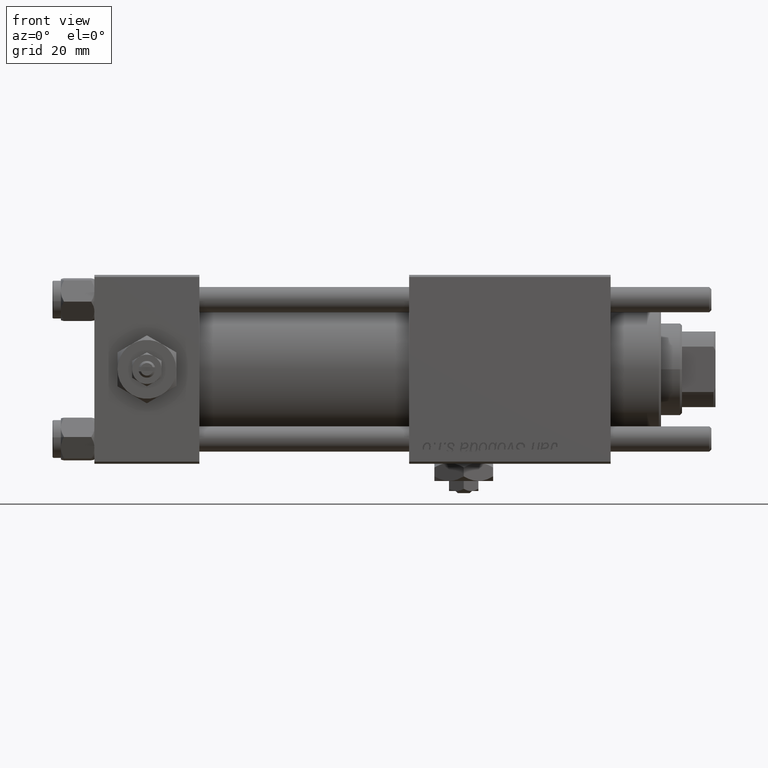
[diagram: clean part render]
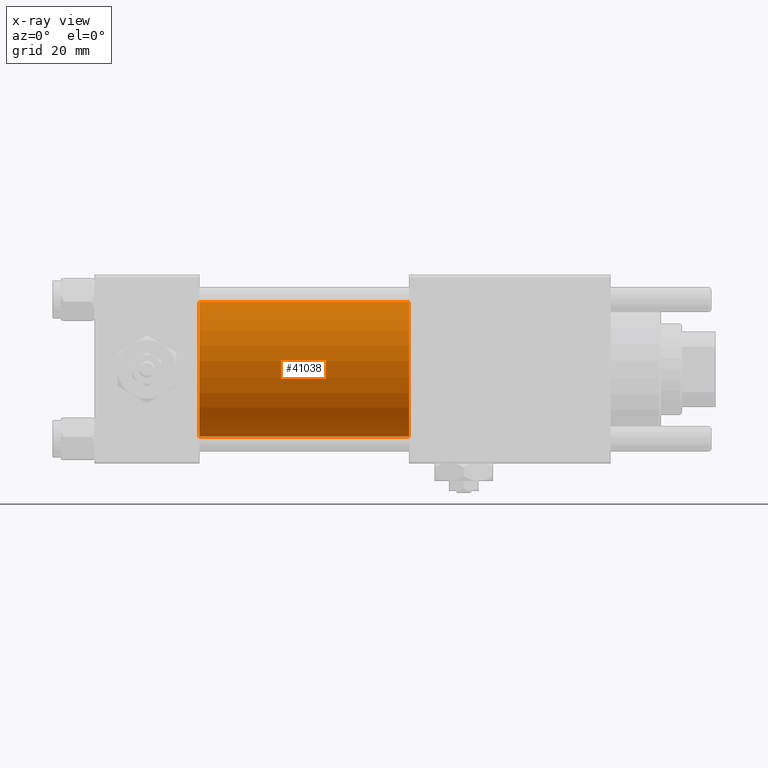
[diagram: x-ray — body ghosted, one internal face saturated and labeled with its STEP entity id]
A machine part, front view, then the same camera in x-ray: the body is ghosted and one INTERNAL B-rep face — a face not visible from any outside direction — is saturated and labeled: STEP entity #41038.
In plain terms, the highlighted cylindrical surface (partial cylindrical patch) has radius 16 mm, axis along (-1, -0, -0).
Its self-contained STEP definition (entity closure, byte-faithful):
#896 = EDGE_CURVE ( 'NONE', #45498, #35774, #36183, .T. ) ;
#2722 = DIRECTION ( 'NONE',  ( -1.000000000000000000, -0.000000000000000000, -0.000000000000000000 ) ) ;
#3216 = DIRECTION ( 'NONE',  ( 1.000000000000000000, 0.000000000000000000, 0.000000000000000000 ) ) ;
#3564 = EDGE_CURVE ( 'NONE', #45498, #3861, #39849, .T. ) ;
#3861 = VERTEX_POINT ( 'NONE', #52545 ) ;
#3974 = VECTOR ( 'NONE', #17234, 1000.000000000000000 ) ;
#4370 = AXIS2_PLACEMENT_3D ( 'NONE', #16381, #2722, #39287 ) ;
#5803 = LINE ( 'NONE', #52356, #49815 ) ;
#7405 = AXIS2_PLACEMENT_3D ( 'NONE', #53609, #8428, #34599 ) ;
#8428 = DIRECTION ( 'NONE',  ( 1.000000000000000000, 0.000000000000000000, 0.000000000000000000 ) ) ;
#9188 = ORIENTED_EDGE ( 'NONE', *, *, #3564, .F. ) ;
#14330 = AXIS2_PLACEMENT_3D ( 'NONE', #30267, #3216, #21342 ) ;
#15037 = VERTEX_POINT ( 'NONE', #21753 ) ;
#16381 = CARTESIAN_POINT ( 'NONE',  ( 75.00000000000001421, -2.602085213965210642E-15, 0.000000000000000000 ) ) ;
#16673 = DIRECTION ( 'NONE',  ( -1.000000000000000000, -0.000000000000000000, -0.000000000000000000 ) ) ;
#17234 = DIRECTION ( 'NONE',  ( -1.000000000000000000, -0.000000000000000000, -0.000000000000000000 ) ) ;
#18134 = EDGE_CURVE ( 'NONE', #35774, #15037, #5803, .T. ) ;
#21142 = CYLINDRICAL_SURFACE ( 'NONE', #4370, 16.00000000000000000 ) ;
#21342 = DIRECTION ( 'NONE',  ( 0.000000000000000000, 0.000000000000000000, -1.000000000000000000 ) ) ;
#21753 = CARTESIAN_POINT ( 'NONE',  ( 25.00000000000000000, -6.426503353294456087E-16, -16.00000000000000000 ) ) ;
#21759 = CARTESIAN_POINT ( 'NONE',  ( 75.00000000000001421, -2.602085213965210642E-15, 16.00000000000000000 ) ) ;
#30267 = CARTESIAN_POINT ( 'NONE',  ( 75.00000000000001421, -2.602085213965210642E-15, 0.000000000000000000 ) ) ;
#33065 = CIRCLE ( 'NONE', #7405, 16.00000000000000000 ) ;
#33696 = ORIENTED_EDGE ( 'NONE', *, *, #896, .T. ) ;
#34166 = CARTESIAN_POINT ( 'NONE',  ( 75.00000000000001421, -6.426503353294456087E-16, -16.00000000000000000 ) ) ;
#34599 = DIRECTION ( 'NONE',  ( 0.000000000000000000, 0.000000000000000000, -1.000000000000000000 ) ) ;
#35233 = EDGE_LOOP ( 'NONE', ( #33696, #52826, #48207, #9188 ) ) ;
#35774 = VERTEX_POINT ( 'NONE', #34166 ) ;
#36183 = CIRCLE ( 'NONE', #14330, 16.00000000000000000 ) ;
#39287 = DIRECTION ( 'NONE',  ( 0.000000000000000000, 0.000000000000000000, 1.000000000000000000 ) ) ;
#39849 = LINE ( 'NONE', #58534, #3974 ) ;
#41038 = ADVANCED_FACE ( 'NONE', ( #57103 ), #21142, .F. ) ;
#45498 = VERTEX_POINT ( 'NONE', #21759 ) ;
#48207 = ORIENTED_EDGE ( 'NONE', *, *, #53152, .F. ) ;
#49815 = VECTOR ( 'NONE', #16673, 1000.000000000000000 ) ;
#52356 = CARTESIAN_POINT ( 'NONE',  ( 75.00000000000001421, -6.426503353294456087E-16, -16.00000000000000000 ) ) ;
#52545 = CARTESIAN_POINT ( 'NONE',  ( 25.00000000000000000, -2.602085213965210642E-15, 16.00000000000000000 ) ) ;
#52826 = ORIENTED_EDGE ( 'NONE', *, *, #18134, .T. ) ;
#53152 = EDGE_CURVE ( 'NONE', #3861, #15037, #33065, .T. ) ;
#53609 = CARTESIAN_POINT ( 'NONE',  ( 25.00000000000000000, -2.602085213965210642E-15, 0.000000000000000000 ) ) ;
#57103 = FACE_OUTER_BOUND ( 'NONE', #35233, .T. ) ;
#58534 = CARTESIAN_POINT ( 'NONE',  ( 75.00000000000001421, -2.602085213965210642E-15, 16.00000000000000000 ) ) ;